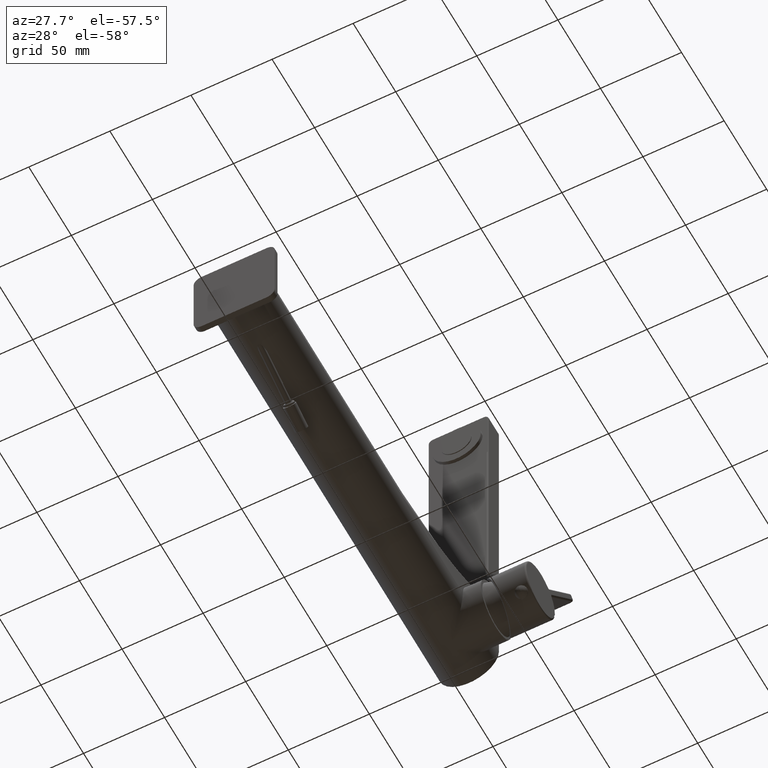
[diagram: clean part render]
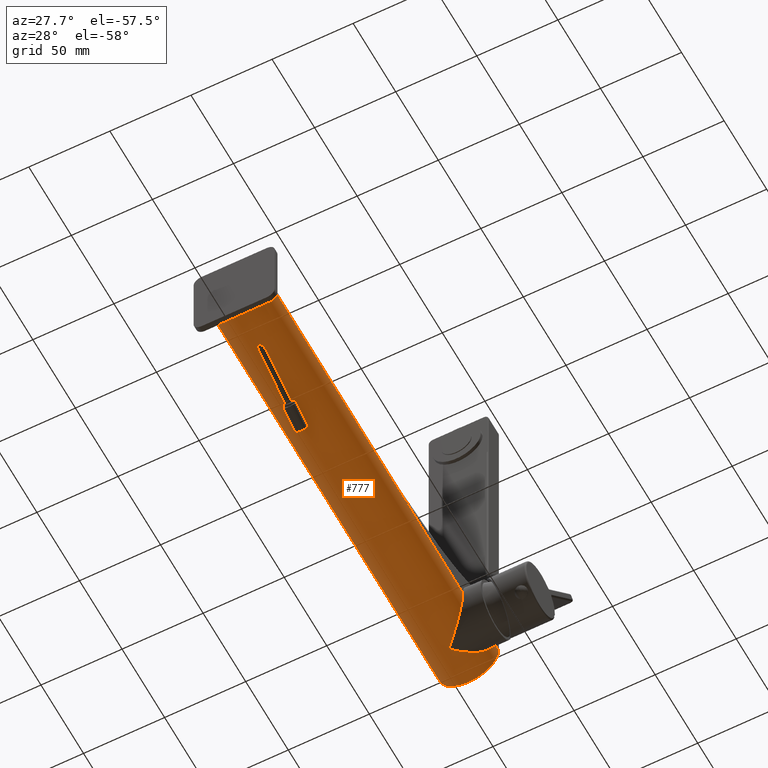
[diagram: same view with one face highlighted and labeled with its STEP entity id]
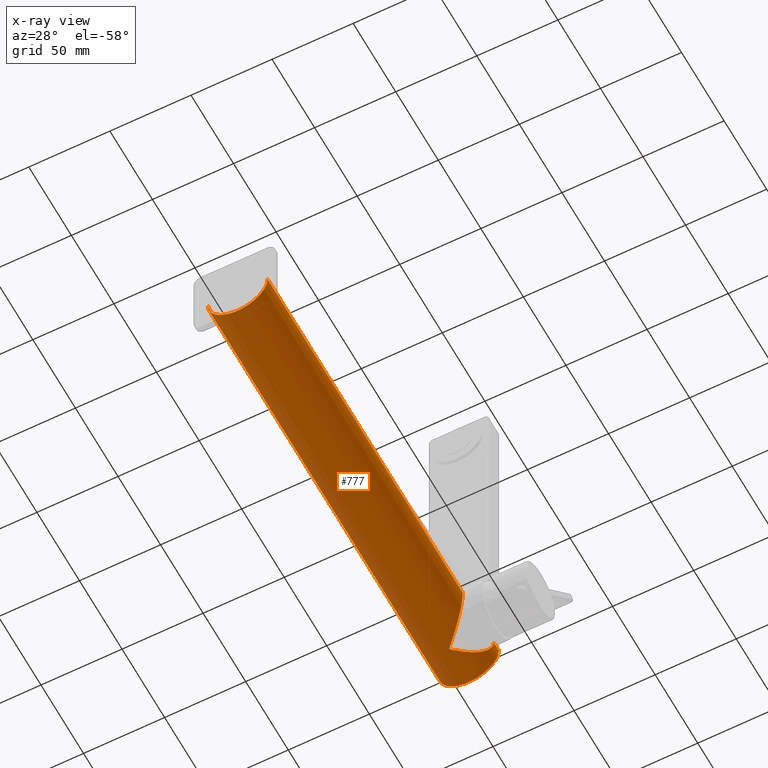
[diagram: x-ray of the same camera — body ghosted, the highlighted face saturated]
A machine part, auxiliary view. The second image highlights one B-rep face of the part: STEP entity #777.
The next image is the same camera in x-ray: the body ghosted, the highlighted face saturated — about 0% of this face is hidden behind the body in this view.
In plain terms, the highlighted cylindrical surface (edge-blend (fillet) strip) has radius 18.5 mm, axis along (0, 1, 0).
Its self-contained STEP definition (entity closure, byte-faithful):
#129=CARTESIAN_POINT('',(0.E0,0.E0,0.E0));
#130=DIRECTION('',(0.E0,-1.E0,0.E0));
#131=DIRECTION('',(-1.E0,0.E0,0.E0));
#132=AXIS2_PLACEMENT_3D('',#129,#130,#131);
#134=DIRECTION('',(0.E0,1.E0,0.E0));
#135=VECTOR('',#134,1.59E2);
#136=CARTESIAN_POINT('',(1.85E1,-1.754152378908E-14,0.E0));
#137=LINE('',#136,#135);
#138=DIRECTION('',(0.E0,1.E0,2.492286249491E-14));
#139=VECTOR('',#138,7.032291870117E1);
#140=CARTESIAN_POINT('',(1.85E1,1.59E2,0.E0));
#141=LINE('',#140,#139);
#142=DIRECTION('',(0.E0,1.E0,4.902732626187E-10));
#143=VECTOR('',#142,5.822918701172E0);
#144=CARTESIAN_POINT('',(1.85E1,2.656770812988E2,1.770141542181E-12));
#145=LINE('',#144,#143);
#146=CARTESIAN_POINT('',(0.E0,2.715E2,0.E0));
#147=DIRECTION('',(0.E0,1.E0,0.E0));
#148=DIRECTION('',(1.E0,0.E0,0.E0));
#149=AXIS2_PLACEMENT_3D('',#146,#147,#148);
#156=DIRECTION('',(0.E0,1.E0,0.E0));
#157=VECTOR('',#156,1.59E2);
#158=CARTESIAN_POINT('',(-1.85E1,-1.754152378908E-14,0.E0));
#159=LINE('',#158,#157);
#192=CARTESIAN_POINT('',(1.85E1,1.59E2,0.E0));
#264=CARTESIAN_POINT('',(-1.85E1,1.59E2,0.E0));
#266=DIRECTION('',(0.E0,1.E0,4.103975522768E-11));
#267=VECTOR('',#266,1.125E2);
#268=CARTESIAN_POINT('',(-1.85E1,1.59E2,0.E0));
#269=LINE('',#268,#267);
#395=CARTESIAN_POINT('',(6.456406889964E-1,2.475E2,-1.848873029985E1));
#396=CARTESIAN_POINT('',(6.456406889964E-1,2.474588996391E2,-1.848873029985E1));
#397=CARTESIAN_POINT('',(6.618614727172E-1,2.473761047210E2,-1.848817444426E1));
#398=CARTESIAN_POINT('',(7.275636852289E-1,2.472491662357E2,-1.848574561918E1));
#399=CARTESIAN_POINT('',(8.177836657062E-1,2.471218655016E2,-1.848200180714E1));
#400=CARTESIAN_POINT('',(9.198762123102E-1,2.469961818414E2,-1.847721894119E1));
#401=CARTESIAN_POINT('',(1.030740896043E0,2.468689781011E2,-1.847138332346E1));
#402=CARTESIAN_POINT('',(1.150210454411E0,2.467374788494E2,-1.846434791919E1));
#403=CARTESIAN_POINT('',(1.278671569363E0,2.465997574500E2,-1.845591882410E1));
#404=CARTESIAN_POINT('',(1.417063947174E0,2.464539891010E2,-1.844583556359E1));
#405=CARTESIAN_POINT('',(1.566556524085E0,2.462984661603E2,-1.843377354240E1));
#406=CARTESIAN_POINT('',(1.728468034879E0,2.461315239406E2,-1.841933613392E1));
#407=CARTESIAN_POINT('',(1.904205010155E0,2.459515239044E2,-1.840204576886E1));
#408=CARTESIAN_POINT('',(2.095334206913E0,2.457567355761E2,-1.838132174912E1));
#409=CARTESIAN_POINT('',(2.303835815365E0,2.455450566500E2,-1.835642655718E1));
#410=CARTESIAN_POINT('',(2.531909739175E0,2.453141979231E2,-1.832644912789E1));
#411=CARTESIAN_POINT('',(2.781617982399E0,2.450620335194E2,-1.829032037087E1));
#412=CARTESIAN_POINT('',(3.054773997503E0,2.447867024332E2,-1.824681466801E1));
#413=CARTESIAN_POINT('',(3.353063102921E0,2.444864815504E2,-1.819451268402E1));
#414=CARTESIAN_POINT('',(3.676798296367E0,2.441610329147E2,-1.813202318400E1));
#415=CARTESIAN_POINT('',(4.024176854730E0,2.438121420024E2,-1.805826519954E1));
#416=CARTESIAN_POINT('',(4.393339766134E0,2.434416463327E2,-1.797218374913E1));
#417=CARTESIAN_POINT('',(4.782544801143E0,2.430512658770E2,-1.787271665195E1));
#418=CARTESIAN_POINT('',(5.190155988174E0,2.426426155393E2,-1.775879849093E1));
#419=CARTESIAN_POINT('',(5.614121767252E0,2.422177289883E2,-1.762951589438E1));
#420=CARTESIAN_POINT('',(6.053223776311E0,2.417778066569E2,-1.748380630788E1));
#421=CARTESIAN_POINT('',(6.515273662217E0,2.413150081302E2,-1.731727791785E1));
#422=CARTESIAN_POINT('',(7.014380657977E0,2.408151971714E2,-1.712174162576E1));
#423=CARTESIAN_POINT('',(7.562039906041E0,2.402668649590E2,-1.688779800883E1));
#424=CARTESIAN_POINT('',(8.169602529598E0,2.396586520297E2,-1.660352164585E1));
#425=CARTESIAN_POINT('',(8.847265931675E0,2.389803572165E2,-1.625411041668E1));
#426=CARTESIAN_POINT('',(9.603818227296E0,2.382231913675E2,-1.582104573152E1));
#427=CARTESIAN_POINT('',(1.044572744085E1,2.373806871937E2,-1.528130380233E1));
#428=CARTESIAN_POINT('',(1.137756078048E1,2.364482786045E2,-1.460505830168E1));
#429=CARTESIAN_POINT('',(1.238495279372E1,2.354403410253E2,-1.376570368585E1));
#430=CARTESIAN_POINT('',(1.341277731578E1,2.344120228855E2,-1.277015767699E1));
#431=CARTESIAN_POINT('',(1.441519043574E1,2.334091759562E2,-1.162977934360E1));
#432=CARTESIAN_POINT('',(1.534726451657E1,2.324767322670E2,-1.037021611384E1));
#433=CARTESIAN_POINT('',(1.617694565700E1,2.316467445472E2,-9.021955704684E0));
#434=CARTESIAN_POINT('',(1.689057383066E1,2.309328670147E2,-7.602543507178E0));
#435=CARTESIAN_POINT('',(1.747660328727E1,2.303466414868E2,-6.134885412831E0));
#436=CARTESIAN_POINT('',(1.792851171409E1,2.298945866649E2,-4.648809412369E0));
#437=CARTESIAN_POINT('',(1.825244628844E1,2.295705495186E2,-3.144256376254E0));
#438=CARTESIAN_POINT('',(1.845246420417E1,2.293704692110E2,-1.606620899116E0));
#439=CARTESIAN_POINT('',(1.85E1,2.293229187012E2,-5.397822565439E-1));
#440=CARTESIAN_POINT('',(1.85E1,2.293229187012E2,1.755481084467E-12));
#456=CARTESIAN_POINT('',(1.85E1,2.656770812988E2,1.770141542181E-12));
#457=CARTESIAN_POINT('',(1.85E1,2.656770812988E2,-5.333041050867E-1));
#458=CARTESIAN_POINT('',(1.845369275186E1,2.656307597168E2,-1.590323111081E0));
#459=CARTESIAN_POINT('',(1.825527973591E1,2.654322848189E2,-3.128287485282E0));
#460=CARTESIAN_POINT('',(1.793269431369E1,2.651095972666E2,-4.631457661554E0));
#461=CARTESIAN_POINT('',(1.748883029245E1,2.646655895015E2,-6.097433239185E0));
#462=CARTESIAN_POINT('',(1.691907668240E1,2.640956454826E2,-7.536618831018E0));
#463=CARTESIAN_POINT('',(1.622571030124E1,2.634020374517E2,-8.932369272180E0));
#464=CARTESIAN_POINT('',(1.541687956289E1,2.625929091398E2,-1.026535530691E1));
#465=CARTESIAN_POINT('',(1.450125885038E1,2.616769278465E2,-1.152253820652E1));
#466=CARTESIAN_POINT('',(1.349174846659E1,2.606669842777E2,-1.268806585476E1));
#467=CARTESIAN_POINT('',(1.244176825447E1,2.596165037561E2,-1.371578007005E1));
#468=CARTESIAN_POINT('',(1.140523419072E1,2.585794114227E2,-1.458454780668E1));
#469=CARTESIAN_POINT('',(1.044614824001E1,2.576197347122E2,-1.528180044287E1));
#470=CARTESIAN_POINT('',(9.575458750382E0,2.567484287695E2,-1.583888605997E1));
#471=CARTESIAN_POINT('',(8.790119521825E0,2.559624478458E2,-1.628560686423E1));
#472=CARTESIAN_POINT('',(8.084209114897E0,2.552558702308E2,-1.664569187376E1));
#473=CARTESIAN_POINT('',(7.449176944868E0,2.546201429672E2,-1.693823519104E1));
#474=CARTESIAN_POINT('',(6.874774696367E0,2.540450121385E2,-1.717856987444E1));
#475=CARTESIAN_POINT('',(6.349508465108E0,2.535189728914E2,-1.737900000718E1));
#476=CARTESIAN_POINT('',(5.861435605490E0,2.530300647696E2,-1.754927606469E1));
#477=CARTESIAN_POINT('',(5.396205496358E0,2.525639030681E2,-1.769764078768E1));
#478=CARTESIAN_POINT('',(4.950785707528E0,2.521174290909E2,-1.782715935534E1));
#479=CARTESIAN_POINT('',(4.526645760106E0,2.516920906012E2,-1.793934010030E1));
#480=CARTESIAN_POINT('',(4.124963061581E0,2.512890388790E2,-1.803574244997E1));
#481=CARTESIAN_POINT('',(3.746769341694E0,2.509092745188E2,-1.811789908712E1));
#482=CARTESIAN_POINT('',(3.392999970930E0,2.505536964288E2,-1.818729380419E1));
#483=CARTESIAN_POINT('',(3.064760992174E0,2.502233705827E2,-1.824530673453E1));
#484=CARTESIAN_POINT('',(2.762671583143E0,2.499188712477E2,-1.829333677993E1));
#485=CARTESIAN_POINT('',(2.485045656062E0,2.496384417693E2,-1.833299138532E1));
#486=CARTESIAN_POINT('',(2.229448745213E0,2.493795431408E2,-1.836572607899E1));
#487=CARTESIAN_POINT('',(1.993616673359E0,2.491397633442E2,-1.839273770315E1));
#488=CARTESIAN_POINT('',(1.775294525426E0,2.489166286050E2,-1.841502689517E1));
#489=CARTESIAN_POINT('',(1.572038351685E0,2.487073440844E2,-1.843343744417E1));
#490=CARTESIAN_POINT('',(1.38264822E0,2.485101693561E2,-1.844856175674E1));
#491=CARTESIAN_POINT('',(1.207341707083E0,2.483244855559E2,-1.846081696309E1));
#492=CARTESIAN_POINT('',(1.046712043532E0,2.481494510857E2,-1.847057773655E1));
#493=CARTESIAN_POINT('',(9.014488145460E-1,2.479830127684E2,-1.847819194124E1));
#494=CARTESIAN_POINT('',(7.753128041904E-1,2.478231960870E2,-1.848386682430E1));
#495=CARTESIAN_POINT('',(6.756372452594E-1,2.476645216655E2,-1.848770757158E1));
#496=CARTESIAN_POINT('',(6.456406889964E-1,2.475553430234E2,-1.848873029985E1));
#497=CARTESIAN_POINT('',(6.456406889964E-1,2.475E2,-1.848873029985E1));
#507=CARTESIAN_POINT('',(1.85E1,2.715E2,0.E0));
#508=CARTESIAN_POINT('',(-1.85E1,2.715E2,0.E0));
#509=VERTEX_POINT('',#507);
#510=VERTEX_POINT('',#508);
#528=VERTEX_POINT('',#264);
#540=VERTEX_POINT('',#192);
#542=CARTESIAN_POINT('',(1.85E1,2.293229187012E2,1.755481084467E-12));
#543=VERTEX_POINT('',#542);
#544=CARTESIAN_POINT('',(1.85E1,0.E0,0.E0));
#545=CARTESIAN_POINT('',(-1.85E1,0.E0,0.E0));
#546=VERTEX_POINT('',#544);
#547=VERTEX_POINT('',#545);
#548=VERTEX_POINT('',#456);
#549=VERTEX_POINT('',#497);
#755=CARTESIAN_POINT('',(0.E0,-2.E0,0.E0));
#756=DIRECTION('',(0.E0,1.E0,0.E0));
#757=DIRECTION('',(1.E0,0.E0,0.E0));
#758=AXIS2_PLACEMENT_3D('',#755,#756,#757);
#759=CYLINDRICAL_SURFACE('',#758,1.85E1);
#761=ORIENTED_EDGE('',*,*,#760,.T.);
#763=ORIENTED_EDGE('',*,*,#762,.T.);
#764=ORIENTED_EDGE('',*,*,#737,.T.);
#766=ORIENTED_EDGE('',*,*,#765,.F.);
#768=ORIENTED_EDGE('',*,*,#767,.F.);
#769=ORIENTED_EDGE('',*,*,#731,.T.);
#770=ORIENTED_EDGE('',*,*,#607,.T.);
#772=ORIENTED_EDGE('',*,*,#771,.F.);
#774=ORIENTED_EDGE('',*,*,#773,.F.);
#775=EDGE_LOOP('',(#761,#763,#764,#766,#768,#769,#770,#772,#774));
#776=FACE_OUTER_BOUND('',#775,.F.);
#777=ADVANCED_FACE('',(#776),#759,.T.);
#133=CIRCLE('',#132,1.85E1);
#150=CIRCLE('',#149,1.85E1);
#441=B_SPLINE_CURVE_WITH_KNOTS('',3,(#395,#396,#397,#398,#399,#400,#401,#402,
#403,#404,#405,#406,#407,#408,#409,#410,#411,#412,#413,#414,#415,#416,#417,#418,
#419,#420,#421,#422,#423,#424,#425,#426,#427,#428,#429,#430,#431,#432,#433,#434,
#435,#436,#437,#438,#439,#440),.UNSPECIFIED.,.F.,.F.,(4,1,1,1,1,1,1,1,1,1,1,1,1,
1,1,1,1,1,1,1,1,1,1,1,1,1,1,1,1,1,1,1,1,1,1,1,1,1,1,1,1,1,1,4),(0.E0,
2.325581395349E-2,4.651162790698E-2,6.976744186047E-2,9.302325581395E-2,
1.162790697674E-1,1.395348837209E-1,1.627906976744E-1,1.860465116279E-1,
2.093023255814E-1,2.325581395349E-1,2.558139534884E-1,2.790697674419E-1,
3.023255813953E-1,3.255813953488E-1,3.488372093023E-1,3.720930232558E-1,
3.953488372093E-1,4.186046511628E-1,4.418604651163E-1,4.651162790698E-1,
4.883720930233E-1,5.116279069767E-1,5.348837209302E-1,5.581395348837E-1,
5.813953488372E-1,6.046511627907E-1,6.279069767442E-1,6.511627906977E-1,
6.744186046512E-1,6.976744186047E-1,7.209302325581E-1,7.441860465116E-1,
7.674418604651E-1,7.906976744186E-1,8.139534883721E-1,8.372093023256E-1,
8.604651162791E-1,8.837209302326E-1,9.069767441860E-1,9.302325581395E-1,
9.534883720930E-1,9.767441860465E-1,1.E0),.UNSPECIFIED.);
#498=B_SPLINE_CURVE_WITH_KNOTS('',3,(#456,#457,#458,#459,#460,#461,#462,#463,
#464,#465,#466,#467,#468,#469,#470,#471,#472,#473,#474,#475,#476,#477,#478,#479,
#480,#481,#482,#483,#484,#485,#486,#487,#488,#489,#490,#491,#492,#493,#494,#495,
#496,#497),.UNSPECIFIED.,.F.,.F.,(4,1,1,1,1,1,1,1,1,1,1,1,1,1,1,1,1,1,1,1,1,1,1,
1,1,1,1,1,1,1,1,1,1,1,1,1,1,1,1,4),(0.E0,2.564102564103E-2,5.128205128205E-2,
7.692307692308E-2,1.025641025641E-1,1.282051282051E-1,1.538461538462E-1,
1.794871794872E-1,2.051282051282E-1,2.307692307692E-1,2.564102564103E-1,
2.820512820513E-1,3.076923076923E-1,3.333333333333E-1,3.589743589744E-1,
3.846153846154E-1,4.102564102564E-1,4.358974358974E-1,4.615384615385E-1,
4.871794871795E-1,5.128205128205E-1,5.384615384615E-1,5.641025641026E-1,
5.897435897436E-1,6.153846153846E-1,6.410256410256E-1,6.666666666667E-1,
6.923076923077E-1,7.179487179487E-1,7.435897435897E-1,7.692307692308E-1,
7.948717948718E-1,8.205128205128E-1,8.461538461538E-1,8.717948717949E-1,
8.974358974359E-1,9.230769230769E-1,9.487179487179E-1,9.743589743590E-1,1.E0),
.UNSPECIFIED.);
#607=EDGE_CURVE('',#509,#510,#150,.T.);
#731=EDGE_CURVE('',#548,#509,#145,.T.);
#737=EDGE_CURVE('',#540,#543,#141,.T.);
#760=EDGE_CURVE('',#547,#546,#133,.T.);
#762=EDGE_CURVE('',#546,#540,#137,.T.);
#765=EDGE_CURVE('',#549,#543,#441,.T.);
#767=EDGE_CURVE('',#548,#549,#498,.T.);
#771=EDGE_CURVE('',#528,#510,#269,.T.);
#773=EDGE_CURVE('',#547,#528,#159,.T.);